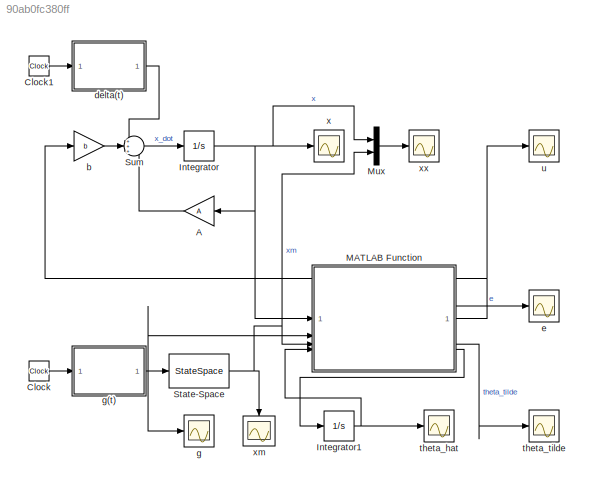
MODEL slx_90ab0fc380ff
KIND model
CONFIG AbsTol = auto
CONFIG EnableMultiTasking = off
CONFIG FixedStep = auto
CONFIG InitFcn = a0=-11; a1=-1; b0=3;\nA=[0 1; -a0 -a1];\nb=[0; b0];\nam0=10.24; am1=6.4;\nAm=[0 1; -am0 -am1];\nbm=[0; am0];\ntheta1=(a0-am0)/b0;\ntheta2=(a1-am1)/b0;\ntheta=[theta1; theta2];\nkappa=b0/am0;\nQ=eye(2);\nP=lyap(Am',Q);
CONFIG MaxStep = auto
CONFIG MinStep = auto
CONFIG RelTol = 1e-3
CONFIG SampleTimeConstraint = Unconstrained
CONFIG SolverName = VariableStepAuto
CONFIG StartTime = 0.0
CONFIG StopTime = 100
BLOCK [Gain] A
  Gain = A
  Multiplication = Matrix(K*u)
  NameLocation = top
BLOCK [Clock] Clock
BLOCK [Clock] Clock1
BLOCK [Integrator] Integrator
  InitialCondition = [0; 0]
BLOCK [Integrator] Integrator1
  InitialCondition = [0; 0]
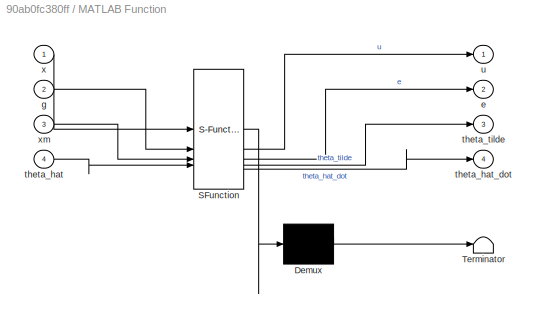
BLOCK [SubSystem] MATLAB Function
  ErrorFcn = Stateflow.Translate.translate
  PermitHierarchicalResolution = ExplicitOnly
  SFBlockType = MATLAB Function
  TreatAsAtomicUnit = on
BLOCK [Demux] MATLAB Function/ Demux 
  Outputs = 1
BLOCK [S-Function] MATLAB Function/ SFunction 
  EnableBusSupport = on
  FunctionName = sf_sfun
  Parameters = P,b,kappa,theta
  PortCounts = [4 5]
  SFcnIsStateOwnerBlock = off
  SFunctionDeploymentMode = off
  Tag = Stateflow S-Function 1
BLOCK [Terminator] MATLAB Function/ Terminator 
BLOCK [Outport] MATLAB Function/e
  Port = 2
BLOCK [Inport] MATLAB Function/g
  Port = 2
BLOCK [Inport] MATLAB Function/theta_hat
  Port = 4
BLOCK [Outport] MATLAB Function/theta_hat_dot
  Port = 4
BLOCK [Outport] MATLAB Function/theta_tilde
  Port = 3
BLOCK [Outport] MATLAB Function/u
BLOCK [Inport] MATLAB Function/x
BLOCK [Inport] MATLAB Function/xm
  Port = 3
BLOCK [Mux] Mux
  DisplayOption = bar
  Inputs = 2
BLOCK [StateSpace] State-Space
  A = Am
  B = bm
  C = eye(2)
  D = [0;0]
  InitialCondition = [0;0]
BLOCK [Sum] Sum
  Inputs = +++
BLOCK [Gain] b
  Gain = b
  Multiplication = Matrix(K*u)
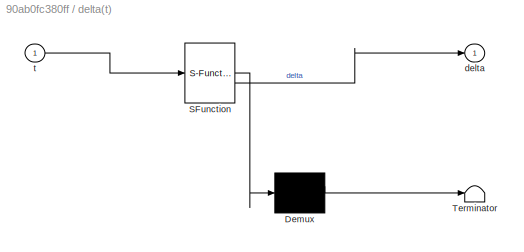
BLOCK [SubSystem] delta(t)
  ErrorFcn = Stateflow.Translate.translate
  PermitHierarchicalResolution = ExplicitOnly
  SFBlockType = MATLAB Function
  TreatAsAtomicUnit = on
BLOCK [Demux] delta(t)/ Demux 
  Outputs = 1
BLOCK [S-Function] delta(t)/ SFunction 
  EnableBusSupport = on
  FunctionName = sf_sfun
  PortCounts = [1 2]
  SFcnIsStateOwnerBlock = off
  SFunctionDeploymentMode = off
  Tag = Stateflow S-Function 3
BLOCK [Terminator] delta(t)/ Terminator 
BLOCK [Outport] delta(t)/delta
BLOCK [Inport] delta(t)/t
BLOCK [Scope] e
  Floating = off
  NumInputPorts = 1
  ScopeSpecificationString = Simulink.scopes.TimeScopeBlockCfg('CurrentConfiguration', extmgr.ConfigurationSet(extmgr.Configuration('Core','General UI',true,'FigureColor',[1 1 1]),extmgr.Configuration('Core','Source UI',true),extmgr.Configuration('Sources','WiredSimulink',true,'DataLoggingVariableName','ScopeData2'),extmgr.Configuration('Visuals','Time Domain',true,'SerializedDisplays',{struct('MinYLimReal','-0.8998','MaxYLim...<+1790ch>
BLOCK [Scope] g
  Floating = off
  NumInputPorts = 1
  ScopeSpecificationString = Simulink.scopes.TimeScopeBlockCfg('CurrentConfiguration', extmgr.ConfigurationSet(extmgr.Configuration('Core','General UI',true,'FigureColor',[1 1 1]),extmgr.Configuration('Core','Source UI',true),extmgr.Configuration('Sources','WiredSimulink',true,'DataLoggingVariableName','ScopeData1'),extmgr.Configuration('Visuals','Time Domain',true,'SerializedDisplays',{struct('MinYLimReal','1.75','MaxYLimRea...<+1651ch>
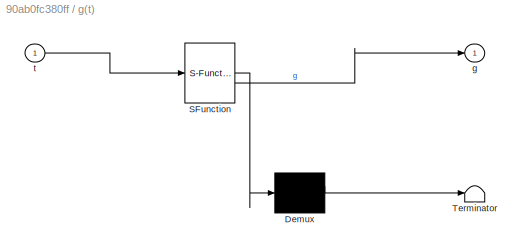
BLOCK [SubSystem] g(t)
  ErrorFcn = Stateflow.Translate.translate
  PermitHierarchicalResolution = ExplicitOnly
  SFBlockType = MATLAB Function
  TreatAsAtomicUnit = on
BLOCK [Demux] g(t)/ Demux 
  Outputs = 1
BLOCK [S-Function] g(t)/ SFunction 
  EnableBusSupport = on
  FunctionName = sf_sfun
  PortCounts = [1 2]
  SFcnIsStateOwnerBlock = off
  SFunctionDeploymentMode = off
  Tag = Stateflow S-Function 2
BLOCK [Terminator] g(t)/ Terminator 
BLOCK [Outport] g(t)/g
BLOCK [Inport] g(t)/t
BLOCK [Scope] theta_hat
  Floating = off
  NumInputPorts = 1
  ScopeSpecificationString = Simulink.scopes.TimeScopeBlockCfg('CurrentConfiguration', extmgr.ConfigurationSet(extmgr.Configuration('Core','General UI',true),extmgr.Configuration('Core','Source UI',true),extmgr.Configuration('Sources','WiredSimulink',true,'DataLoggingVariableName','ScopeData6'),extmgr.Configuration('Visuals','Time Domain',true,'SerializedDisplays',{struct('MinYLimReal','-6.32112','MaxYLimReal','0.70235','YLab...<+1477ch>
BLOCK [Scope] theta_tilde
  Floating = off
  NumInputPorts = 1
  ScopeSpecificationString = Simulink.scopes.TimeScopeBlockCfg('CurrentConfiguration', extmgr.ConfigurationSet(extmgr.Configuration('Core','General UI',true,'FigureColor',[1 1 1]),extmgr.Configuration('Core','Source UI',true),extmgr.Configuration('Sources','WiredSimulink',true,'DataLoggingVariableName','ScopeData5'),extmgr.Configuration('Visuals','Time Domain',true,'SerializedDisplays',{struct('MinYLimReal','-8.90647','MaxYLi...<+1782ch>
BLOCK [Scope] u
  Floating = off
  NumInputPorts = 1
  ScopeSpecificationString = Simulink.scopes.TimeScopeBlockCfg('CurrentConfiguration', extmgr.ConfigurationSet(extmgr.Configuration('Core','General UI',true),extmgr.Configuration('Core','Source UI',true),extmgr.Configuration('Sources','WiredSimulink',true,'DataLoggingVariableName','ScopeData3'),extmgr.Configuration('Visuals','Time Domain',true,'SerializedDisplays',{struct('MinYLimReal','-32.33075','MaxYLimReal','18.76268','YL...<+1471ch>
BLOCK [Scope] x
  Floating = off
  NameLocation = right
  NumInputPorts = 1
  ScopeSpecificationString = Simulink.scopes.TimeScopeBlockCfg('CurrentConfiguration', extmgr.ConfigurationSet(extmgr.Configuration('Core','General UI',true,'FigureColor',[1 1 1]),extmgr.Configuration('Core','Source UI',true),extmgr.Configuration('Sources','WiredSimulink',true,'DataLoggingVariableName','ScopeData1'),extmgr.Configuration('Visuals','Time Domain',true,'SerializedDisplays',{struct('MinYLimReal','-3.26255','MaxYLi...<+1776ch>
BLOCK [Scope] xm
  Floating = off
  NumInputPorts = 1
  ScopeSpecificationString = Simulink.scopes.TimeScopeBlockCfg('CurrentConfiguration', extmgr.ConfigurationSet(extmgr.Configuration('Core','General UI',true,'FigureColor',[1 1 1]),extmgr.Configuration('Core','Source UI',true),extmgr.Configuration('Sources','WiredSimulink',true,'DataLoggingVariableName','ScopeData2'),extmgr.Configuration('Visuals','Time Domain',true,'SerializedDisplays',{struct('MinYLimReal','-3.26255','MaxYLi...<+1780ch>
BLOCK [Scope] xx
  Floating = off
  NumInputPorts = 1
  ScopeSpecificationString = Simulink.scopes.TimeScopeBlockCfg('CurrentConfiguration', extmgr.ConfigurationSet(extmgr.Configuration('Core','General UI',true,'FigureColor',[1 1 1]),extmgr.Configuration('Core','Source UI',true),extmgr.Configuration('Sources','WiredSimulink',true,'DataLoggingVariableName','ScopeData1'),extmgr.Configuration('Visuals','Time Domain',true,'SerializedDisplays',{struct('MinYLimReal','-3.33264','MaxYLi...<+2035ch>
LINE A:1 -> Sum:3
LINE Clock1:1 -> delta(t):1
LINE Clock:1 -> g(t):1
NET Integrator1:1 -> MATLAB Function:4, theta_hat:1
NET Integrator:1 -> A:1, MATLAB Function:1, Mux:1, x:1
NET MATLAB Function:1 -> b:1, u:1
LINE MATLAB Function:2 -> e:1
LINE MATLAB Function:3 -> theta_tilde:1
LINE MATLAB Function:4 -> Integrator1:1
LINE Mux:1 -> xx:1
NET State-Space:1 -> MATLAB Function:3, Mux:2, xm:1
LINE Sum:1 -> Integrator:1
LINE b:1 -> Sum:2
LINE delta(t):1 -> Sum:1
NET g(t):1 -> MATLAB Function:2, State-Space:1, g:1
note: NET lines group one-source signal fan-out (src -> all destinations, sorted); 1:1 wires keep LINE
CHART MATLAB Function states=1 transitions=1
  STATE_LABEL 'eML_blk_kernel()'
  STATE_LABEL "SCRIPT:\nfunction [u, e, theta_tilde, theta_hat_dot] = fcn(x, g, xm, theta_hat, kappa, b, theta, P)\ngamma=100; %10, 100\nsigma=0.1; %1, 0.1\n\ne=xm-x;\nu=theta_hat'*x+1/kappa*g;\ntheta_tilde = theta - theta_hat;\ntheta_hat_dot = -sigma*theta_hat+gamma*x*b'*P*e;"
CHART g(t) states=1 transitions=1
  STATE_LABEL 'eML_blk_kernel()'
  STATE_LABEL 'SCRIPT:\nfunction g = fcn(t)\n\ng = sign(sin(0.5*t))+3; %sign(sin(0.5*t))+3\n\n'
CHART delta(t) states=1 transitions=1
  STATE_LABEL 'eML_blk_kernel()'
  STATE_LABEL 'SCRIPT:\nfunction delta = fcn(t)\n% [0.6*sin(10*t)+0.1*sin(50*t); 0.5*cos(12*t)+0.2*sin(30*t)]\ndelta = [0.6*sin(10*t)+0.1*sin(50*t); 0.5*cos(12*t)+0.2*sin(30*t)]; \n\n'
CHART  states=0 transitions=0
CHART  states=0 transitions=0
CHART  states=0 transitions=0
